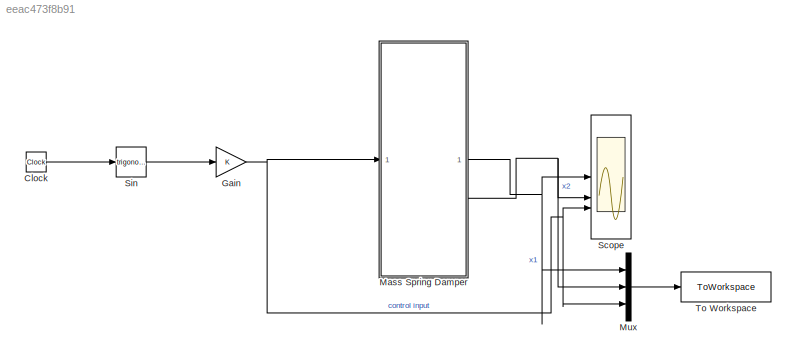
MODEL slx_eeac473f8b91
KIND model
CONFIG AbsTol = auto
CONFIG EnableMultiTasking = off
CONFIG FixedStep = 0.01
CONFIG MaxStep = auto
CONFIG MinStep = auto
CONFIG RelTol = 1e-3
CONFIG SampleTimeConstraint = Unconstrained
CONFIG SolverName = FixedStepAuto
CONFIG StartTime = 0.0
CONFIG StopTime = 25
BLOCK [Clock] Clock
BLOCK [Gain] Gain
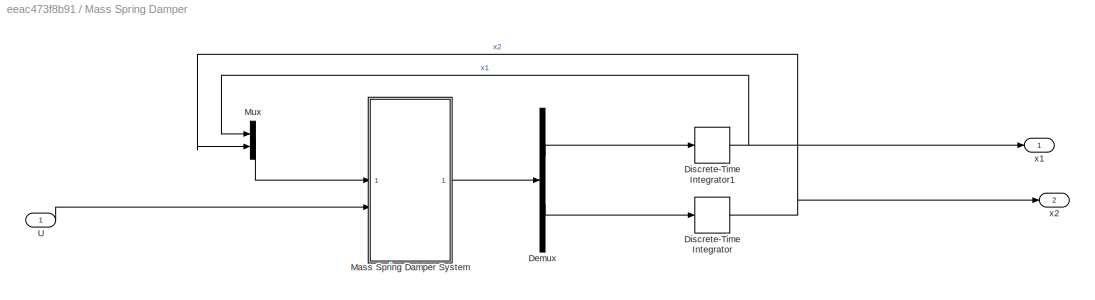
BLOCK [SubSystem] Mass Spring Damper
BLOCK [Demux] Mass Spring Damper/Demux
  Outputs = 2
BLOCK [DiscreteIntegrator] Mass Spring Damper/Discrete-Time Integrator
  ICPrevOutput = DiscIntNeverNeededParam
  ICPrevScaledInput = DiscIntNeverNeededParam
  InitialConditionSetting = Auto
  SampleTime = -1
BLOCK [DiscreteIntegrator] Mass Spring Damper/Discrete-Time Integrator1
  ICPrevOutput = DiscIntNeverNeededParam
  ICPrevScaledInput = DiscIntNeverNeededParam
  InitialCondition = 2.5
  InitialConditionSetting = Auto
  SampleTime = -1
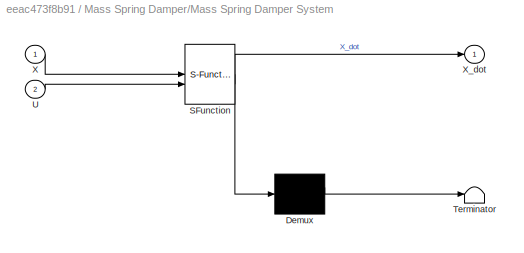
BLOCK [SubSystem] Mass Spring Damper/Mass Spring Damper System
  ErrorFcn = Stateflow.Translate.translate
  LibrarySourceBlock = simulink/User-Defined\nFunctions/MATLAB Function
  PermitHierarchicalResolution = ExplicitOnly
  SFBlockType = MATLAB Function
  TreatAsAtomicUnit = on
BLOCK [Demux] Mass Spring Damper/Mass Spring Damper System/ Demux 
  Outputs = 1
BLOCK [S-Function] Mass Spring Damper/Mass Spring Damper System/ SFunction 
  EnableBusSupport = on
  FunctionName = sf_sfun
  PortCounts = [2 2]
  SFcnIsStateOwnerBlock = off
  SFunctionDeploymentMode = off
  Tag = Stateflow S-Function 2
BLOCK [Terminator] Mass Spring Damper/Mass Spring Damper System/ Terminator 
BLOCK [Inport] Mass Spring Damper/Mass Spring Damper System/U
  Port = 2
BLOCK [Inport] Mass Spring Damper/Mass Spring Damper System/X
BLOCK [Outport] Mass Spring Damper/Mass Spring Damper System/X_dot
BLOCK [Mux] Mass Spring Damper/Mux
  DisplayOption = bar
  Inputs = 2
BLOCK [Inport] Mass Spring Damper/U
BLOCK [Outport] Mass Spring Damper/x1
BLOCK [Outport] Mass Spring Damper/x2
  Port = 2
BLOCK [Mux] Mux
  DisplayOption = bar
  Inputs = 3
BLOCK [Scope] Scope
  Floating = off
  NumInputPorts = 3
  ScopeSpecificationString = Simulink.scopes.TimeScopeBlockCfg('CurrentConfiguration', extmgr.ConfigurationSet(extmgr.Configuration('Core','General UI',true,'FigureColor',[0.501960784313725 0.501960784313725 0.501960784313725]),extmgr.Configuration('Core','Source UI',true),extmgr.Configuration('Sources','WiredSimulink',true),extmgr.Configuration('Visuals','Time Domain',true,'SerializedDisplays',{struct('MinYLimReal','-3.51121...<+1859ch>
BLOCK [Trigonometry] Sin
BLOCK [ToWorkspace] To Workspace
  FixptAsFi = on
  MaxDataPoints = inf
  SampleTime = -1
  VariableName = MSD_Data01
LINE Clock:1 -> Sin:1
NET Gain:1 -> Mass Spring Damper:1, Mux:3, Scope:3
LINE Mass Spring Damper/Demux:1 -> Mass Spring Damper/Discrete-Time Integrator1:1
LINE Mass Spring Damper/Demux:2 -> Mass Spring Damper/Discrete-Time Integrator:1
NET Mass Spring Damper/Discrete-Time Integrator1:1 -> Mass Spring Damper/Mux:1, Mass Spring Damper/x1:1
NET Mass Spring Damper/Discrete-Time Integrator:1 -> Mass Spring Damper/Mux:2, Mass Spring Damper/x2:1
LINE Mass Spring Damper/Mass Spring Damper System:1 -> Mass Spring Damper/Demux:1
LINE Mass Spring Damper/Mux:1 -> Mass Spring Damper/Mass Spring Damper System:1
LINE Mass Spring Damper/U:1 -> Mass Spring Damper/Mass Spring Damper System:2
NET Mass Spring Damper:1 -> Mux:1, Scope:1
NET Mass Spring Damper:2 -> Mux:2, Scope:2
LINE Mux:1 -> To Workspace:1
LINE Sin:1 -> Gain:1
note: NET lines group one-source signal fan-out (src -> all destinations, sorted); 1:1 wires keep LINE
CHART Mass Spring Damper/Mass Spring Damper System states=1 transitions=1
  STATE_LABEL 'eML_blk_kernel()'
  STATE_LABEL 'SCRIPT:\nfunction X_dot = fcn(X,U)\nm = 5;\nk = 10;\nc = 2;\n\nA = [0 1; -k/m -c/m];\nB = [0; 1/m];\n\nX_dot = (A*X)+ (B.*U);\n\nend \n\n\n\n'
CHART  states=0 transitions=0
